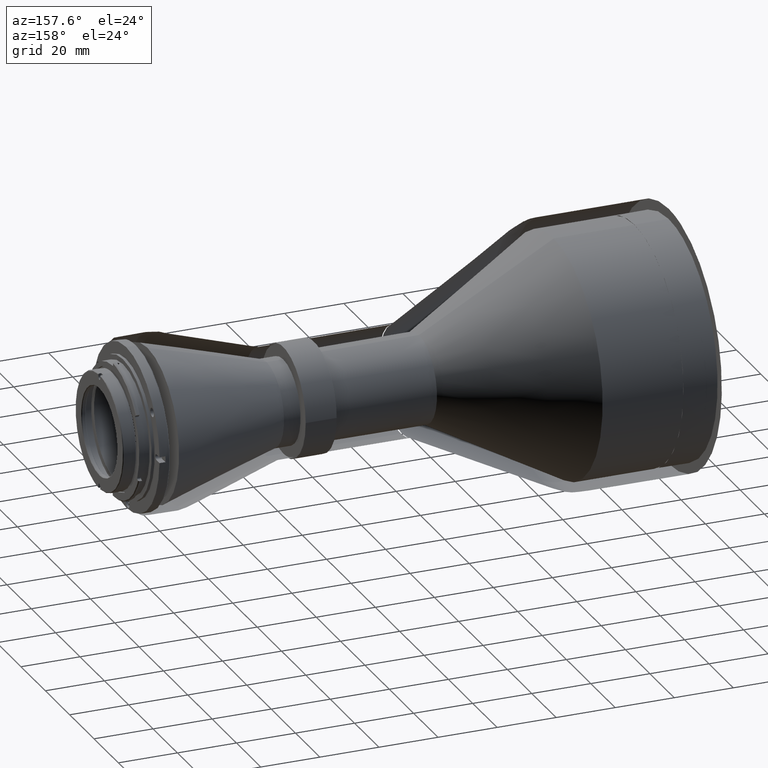
[diagram: clean part render]
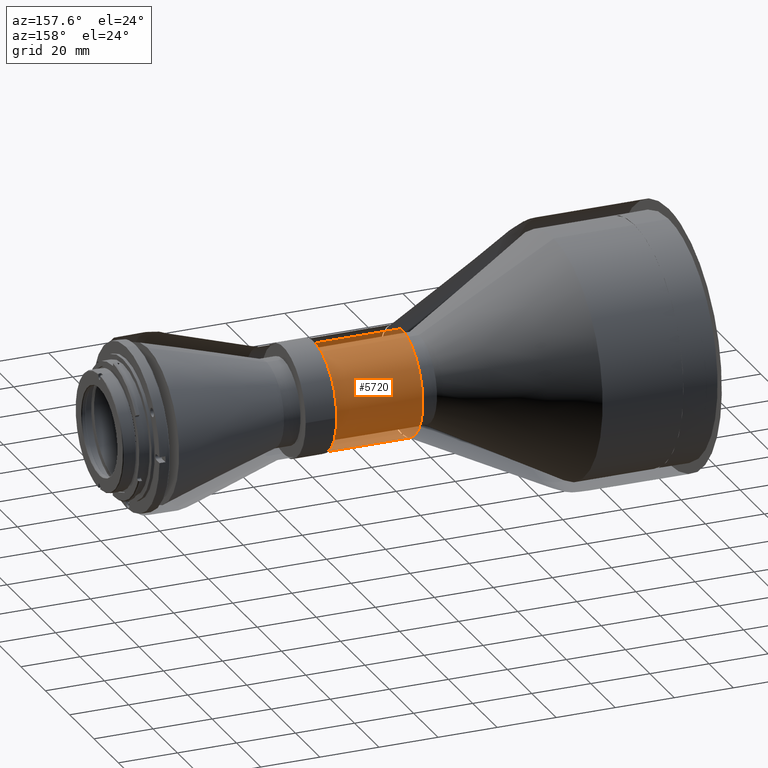
[diagram: same view with one face highlighted and labeled with its STEP entity id]
A machine part, auxiliary view. The second image highlights one B-rep face of the part: STEP entity #5720.
In plain terms, the highlighted cylindrical surface (partial cylindrical patch) has radius 18 mm, axis along (1, 0, 0).
Its self-contained STEP definition (entity closure, byte-faithful):
#45 = VERTEX_POINT ( 'NONE', #5114 ) ;
#121 = B_SPLINE_CURVE_WITH_KNOTS ( 'NONE', 3,
 ( #446, #6898, #8262, #1801, #5292, #8968, #1000, #4731, #1046, #2511, #5997, #9012, #8168, #6716, #1143, #4025, #6808, #399, #259, #3315, #3120, #9063, #7651, #1849, #6196, #4680, #3884, #6760, #7555, #1757, #8868, #1094, #2415, #3978, #302, #6852, #1192, #5384, #2606, #7466, #3169, #5487, #8357, #3267, #1901, #4783, #6146, #1711, #4587, #6050, #8918, #2556, #5435, #8309, #2463, #5339 ),
 .UNSPECIFIED., .F., .F.,
 ( 4, 2, 2, 2, 2, 2, 2, 2, 2, 2, 2, 2, 2, 2, 2, 2, 2, 2, 2, 2, 2, 2, 2, 2, 2, 2, 2, 4 ),
 ( 0.3333404238555422450, 0.3541735356100568777, 0.3750066473645715104, 0.3958397591190861431, 0.4166728708736008313, 0.4583390943826297081, 0.4791722061371438413, 0.5000053178916580299, 0.5208384296461721075, 0.5416715414006862961, 0.5833377649097144513, 0.6041708766642285289, 0.6250039884187426065, 0.6458371001732566841, 0.6666702119277707617, 0.7083364354367989169, 0.7291695471913128834, 0.7500026589458270720, 0.7708357707003410386, 0.7916688824548551162, 0.8333351059638840486, 0.8541682177183986813, 0.8750013294729130919, 0.8958344412274275026, 0.9166675529819421353, 0.9583337764909711787, 0.9791668882454855893, 1.000000000000000000 ),
 .UNSPECIFIED. ) ;
#259 = CARTESIAN_POINT ( 'NONE',  ( 96.07470248000001334, 14.63977100480564530, -153.6221528347644210 ) ) ;
#302 = CARTESIAN_POINT ( 'NONE',  ( 96.07470248000002755, 16.85546658595249525, -170.4549580707854375 ) ) ;
#399 = CARTESIAN_POINT ( 'NONE',  ( 96.07470248000004176, 14.28760120858573046, -153.1473240025691496 ) ) ;
#446 = CARTESIAN_POINT ( 'NONE',  ( 96.07470248899998921, 3.218466822045162552E-09, -146.1113920455246387 ) ) ;
#495 = CARTESIAN_POINT ( 'NONE',  ( 66.60158703892639664, 16.17899328778576518, -156.1346934763729450 ) ) ;
#512 = CARTESIAN_POINT ( 'NONE',  ( 81.33814476300000251, -1.355854680848614041E-28, -146.1114151909995655 ) ) ;
#541 = CARTESIAN_POINT ( 'NONE',  ( 66.60158703892639664, 13.56096261225920507, -176.0062967014450521 ) ) ;
#782 = LINE ( 'NONE', #3662, #2322 ) ;
#874 = DIRECTION ( 'NONE',  ( 1.000000000000000000, 0.000000000000000000, 0.000000000000000000 ) ) ;
#973 = AXIS2_PLACEMENT_3D ( 'NONE', #6743, #6788, #6834 ) ;
#1000 = CARTESIAN_POINT ( 'NONE',  ( 96.07470248000002755, 4.661676962329277529, -146.7154800735443132 ) ) ;
#1046 = CARTESIAN_POINT ( 'NONE',  ( 96.07470248000004176, 6.345108377216560847, -147.2565310340280575 ) ) ;
#1094 = CARTESIAN_POINT ( 'NONE',  ( 96.07470248000002755, 17.53935381255666925, -168.2001695520610269 ) ) ;
#1143 = CARTESIAN_POINT ( 'NONE',  ( 96.07470248000001334, 12.31114250905945795, -150.9667182083490502 ) ) ;
#1192 = CARTESIAN_POINT ( 'NONE',  ( 96.07470248000004176, 16.15237853776849519, -172.0769947795117218 ) ) ;
#1236 = B_SPLINE_CURVE_WITH_KNOTS ( 'NONE', 3,
 ( #6295, #1329, #2744, #6380, #3497, #9155, #6424, #1379, #8453, #541, #3455, #9245, #7877, #3365, #7702, #7831, #4916, #4256, #3412, #1995, #5631, #495, #4871, #7746, #1288, #8496, #7789, #9290, #4211, #4075, #5674, #8544, #7265, #5808 ),
 .UNSPECIFIED., .F., .F.,
 ( 4, 2, 2, 2, 2, 2, 2, 2, 2, 2, 2, 2, 2, 2, 2, 2, 4 ),
 ( -1.000000000000000000, -0.9375000000000000000, -0.8750000000000001110, -0.8125000000000000000, -0.7500000000000000000, -0.6875000000000000000, -0.6250000000000000000, -0.5625000000000000000, -0.5000000000000000000, -0.4375000000000000000, -0.3749999999999998890, -0.3124999999999998890, -0.2499999999999997780, -0.1874999999999998890, -0.1249999999999998890, -0.06250000000000000000, -0.000000000000000000 ),
 .UNSPECIFIED. ) ;
#1288 = CARTESIAN_POINT ( 'NONE',  ( 66.60158703892639664, 13.56096261225905941, -152.2165336805448135 ) ) ;
#1329 = CARTESIAN_POINT ( 'NONE',  ( 66.60158703892639664, 1.178097245096017209, -182.1114151909903853 ) ) ;
#1379 = CARTESIAN_POINT ( 'NONE',  ( 66.60158703892639664, 10.97981625398498196, -178.4233524514592375 ) ) ;
#1711 = CARTESIAN_POINT ( 'NONE',  ( 96.07470248000002755, 7.966350278981437327, -180.2633224506187730 ) ) ;
#1723 = CARTESIAN_POINT ( 'NONE',  ( 66.60158703892641086, 1.043770461255672006E-13, -182.1114151909904990 ) ) ;
#1757 = CARTESIAN_POINT ( 'NONE',  ( 96.07470247999999913, 18.00008917614680826, -165.2890392936584760 ) ) ;
#1801 = CARTESIAN_POINT ( 'NONE',  ( 96.07470248000001334, 2.350776600415617423, -146.2557873199660889 ) ) ;
#1849 = CARTESIAN_POINT ( 'NONE',  ( 96.07470248000002755, 17.39599407110641849, -159.4499789391271634 ) ) ;
#1901 = CARTESIAN_POINT ( 'NONE',  ( 96.07470248000002755, 10.49061672707500570, -178.7502078840822719 ) ) ;
#1995 = CARTESIAN_POINT ( 'NONE',  ( 66.60158703892641086, 17.42429967634159382, -159.4443289578318286 ) ) ;
#2054 = EDGE_LOOP ( 'NONE', ( #5961, #3201, #5179, #5708 ) ) ;
#2322 = VECTOR ( 'NONE', #874, 1000.000000000000000 ) ;
#2415 = CARTESIAN_POINT ( 'NONE',  ( 96.07470248000001334, 17.39572564860750603, -168.7736301571663375 ) ) ;
#2463 = CARTESIAN_POINT ( 'NONE',  ( 96.07470248000002755, 0.5902320365141722203, -182.1114151910003329 ) ) ;
#2511 = CARTESIAN_POINT ( 'NONE',  ( 96.07470248000004176, 7.976521022211192857, -147.9322582347705861 ) ) ;
#2538 = CYLINDRICAL_SURFACE ( 'NONE', #973, 17.99999999999540989 ) ;
#2556 = CARTESIAN_POINT ( 'NONE',  ( 96.07470248000004176, 2.934726415843505354, -181.8803269731702130 ) ) ;
#2606 = CARTESIAN_POINT ( 'NONE',  ( 96.07470248000004176, 15.29333176096207936, -173.6225414479326048 ) ) ;
#2744 = CARTESIAN_POINT ( 'NONE',  ( 66.60158703892639664, 2.356165359415931970, -181.9953856091606781 ) ) ;
#3080 = EDGE_CURVE ( 'NONE', #9150, #5700, #121, .T. ) ;
#3120 = CARTESIAN_POINT ( 'NONE',  ( 96.07470247999999913, 16.17922491130633489, -156.1349563163130370 ) ) ;
#3169 = CARTESIAN_POINT ( 'NONE',  ( 96.07470248000001334, 13.56095707534392680, -176.0064417518224502 ) ) ;
#3201 = ORIENTED_EDGE ( 'NONE', *, *, #6578, .T. ) ;
#3240 = EDGE_CURVE ( 'NONE', #8926, #45, #1236, .T. ) ;
#3267 = CARTESIAN_POINT ( 'NONE',  ( 96.07470248000001334, 10.96394305491526389, -178.3992264544305044 ) ) ;
#3315 = CARTESIAN_POINT ( 'NONE',  ( 96.07470248000002755, 15.62083645432595880, -155.0903577905687030 ) ) ;
#3365 = CARTESIAN_POINT ( 'NONE',  ( 66.60158703892639664, 17.08066988261213837, -169.9112970415127677 ) ) ;
#3412 = CARTESIAN_POINT ( 'NONE',  ( 66.60158703892641086, 17.88397041816574884, -161.7552498315790785 ) ) ;
#3455 = CARTESIAN_POINT ( 'NONE',  ( 66.60158703892639664, 14.31193726046444858, -175.0912314449797691 ) ) ;
#3497 = CARTESIAN_POINT ( 'NONE',  ( 66.60158703892639664, 5.799881850517985882, -181.1920850736070179 ) ) ;
#3601 = CARTESIAN_POINT ( 'NONE',  ( 96.07470248899998921, 3.218466822045162552E-09, -146.1113920455246387 ) ) ;
#3662 = CARTESIAN_POINT ( 'NONE',  ( 81.33814476300000251, 1.043770461255672764E-13, -182.1114151909903853 ) ) ;
#3884 = CARTESIAN_POINT ( 'NONE',  ( 96.07470248000001334, 17.85566553463110395, -161.7608835578621722 ) ) ;
#3978 = CARTESIAN_POINT ( 'NONE',  ( 96.07470247999999913, 17.05403189268667674, -169.9001623814377240 ) ) ;
#4025 = CARTESIAN_POINT ( 'NONE',  ( 96.07470248000004176, 13.14534043823540621, -151.8009068524461895 ) ) ;
#4075 = CARTESIAN_POINT ( 'NONE',  ( 66.60158703892639664, 5.799881850517786042, -147.0307453083829046 ) ) ;
#4211 = CARTESIAN_POINT ( 'NONE',  ( 66.60158703892639664, 7.976721714621807457, -147.9324219032091889 ) ) ;
#4256 = CARTESIAN_POINT ( 'NONE',  ( 66.60158703892638243, 17.99999999999543832, -162.9333179458989491 ) ) ;
#4571 = CARTESIAN_POINT ( 'NONE',  ( 96.07470249142200203, 3.568052712872249707E-14, -182.1114151909935117 ) ) ;
#4587 = CARTESIAN_POINT ( 'NONE',  ( 96.07470248000001334, 7.431944757544597380, -180.5161009769088594 ) ) ;
#4680 = CARTESIAN_POINT ( 'NONE',  ( 96.07470248000002755, 17.76928473539256004, -161.1786502158255416 ) ) ;
#4731 = CARTESIAN_POINT ( 'NONE',  ( 96.07470248000001334, 5.788490438349359835, -147.0573769010957221 ) ) ;
#4783 = CARTESIAN_POINT ( 'NONE',  ( 96.07470248000002755, 9.509723873782720105, -179.4056540240879940 ) ) ;
#4871 = CARTESIAN_POINT ( 'NONE',  ( 66.60158703892639664, 15.62096878241965570, -155.0907030562791817 ) ) ;
#4916 = CARTESIAN_POINT ( 'NONE',  ( 66.60158703892638243, 17.99999999999545963, -165.2895124360907175 ) ) ;
#5114 = CARTESIAN_POINT ( 'NONE',  ( 66.60158703892641086, 2.204364238464549908E-15, -146.1114151909995940 ) ) ;
#5179 = ORIENTED_EDGE ( 'NONE', *, *, #3080, .F. ) ;
#5292 = CARTESIAN_POINT ( 'NONE',  ( 96.07470248000002755, 2.933650245757153385, -146.3423132397708741 ) ) ;
#5339 = CARTESIAN_POINT ( 'NONE',  ( 96.07470249142200203, 3.568052712872249707E-14, -182.1114151909935117 ) ) ;
#5384 = CARTESIAN_POINT ( 'NONE',  ( 96.07470247999999913, 15.59724061000928863, -173.1154659409896510 ) ) ;
#5435 = CARTESIAN_POINT ( 'NONE',  ( 96.07470248000004176, 2.349873660069027981, -181.9671050602830462 ) ) ;
#5487 = CARTESIAN_POINT ( 'NONE',  ( 96.07470248000005597, 12.31193189824783651, -177.2553559111827894 ) ) ;
#5631 = CARTESIAN_POINT ( 'NONE',  ( 66.60158703892639664, 17.08066988261207086, -158.3115333404770411 ) ) ;
#5674 = CARTESIAN_POINT ( 'NONE',  ( 66.60158703892639664, 4.667086233162970998, -146.6871155146534136 ) ) ;
#5700 = VERTEX_POINT ( 'NONE', #4571 ) ;
#5708 = ORIENTED_EDGE ( 'NONE', *, *, #6144, .F. ) ;
#5720 = ADVANCED_FACE ( 'NONE', ( #7448 ), #2538, .F. ) ;
#5724 = DIRECTION ( 'NONE',  ( 1.000000000000000000, 0.000000000000000000, 0.000000000000000000 ) ) ;
#5808 = CARTESIAN_POINT ( 'NONE',  ( 66.60158703892641086, 2.204364238464549908E-15, -146.1114151909995940 ) ) ;
#5961 = ORIENTED_EDGE ( 'NONE', *, *, #3240, .F. ) ;
#5997 = CARTESIAN_POINT ( 'NONE',  ( 96.07470248000002755, 9.021148383289416373, -148.4905926335397055 ) ) ;
#6050 = CARTESIAN_POINT ( 'NONE',  ( 96.07470247999999913, 5.800566712932708313, -181.1919138994582852 ) ) ;
#6144 = EDGE_CURVE ( 'NONE', #45, #9150, #9253, .T. ) ;
#6146 = CARTESIAN_POINT ( 'NONE',  ( 96.07470248000001334, 9.004870584164004654, -179.7082769373952829 ) ) ;
#6196 = CARTESIAN_POINT ( 'NONE',  ( 96.07470248000001334, 17.53911755931793692, -160.0215931152971223 ) ) ;
#6295 = CARTESIAN_POINT ( 'NONE',  ( 66.60158703892641086, 1.043770461255672006E-13, -182.1114151909904990 ) ) ;
#6380 = CARTESIAN_POINT ( 'NONE',  ( 66.60158703892638243, 4.667086233163183273, -181.5357148673365089 ) ) ;
#6424 = CARTESIAN_POINT ( 'NONE',  ( 66.60158703892639664, 9.020712134715868302, -179.7323839734145565 ) ) ;
#6578 = EDGE_CURVE ( 'NONE', #8926, #5700, #782, .T. ) ;
#6716 = CARTESIAN_POINT ( 'NONE',  ( 96.07470247999999913, 11.87456993373065117, -150.5709504145605138 ) ) ;
#6743 = CARTESIAN_POINT ( 'NONE',  ( 81.33814476300000251, 5.329070518201590111E-14, -164.1114151909949896 ) ) ;
#6760 = CARTESIAN_POINT ( 'NONE',  ( 96.07470247999999913, 17.97102155551066716, -162.9327598254805878 ) ) ;
#6788 = DIRECTION ( 'NONE',  ( 1.000000000000000000, 0.000000000000000000, 0.000000000000000000 ) ) ;
#6808 = CARTESIAN_POINT ( 'NONE',  ( 96.07470248000002755, 13.54063217814066000, -152.2370280112902208 ) ) ;
#6834 = DIRECTION ( 'NONE',  ( 0.000000000000000000, -2.960594732334979162E-15, 1.000000000000000000 ) ) ;
#6852 = CARTESIAN_POINT ( 'NONE',  ( 96.07470248000002755, 16.40402373295713545, -171.5448932054708280 ) ) ;
#6898 = CARTESIAN_POINT ( 'NONE',  ( 96.07470247999999913, 0.5887703971600187769, -146.1114098354472048 ) ) ;
#7265 = CARTESIAN_POINT ( 'NONE',  ( 66.60158703892639664, 1.178097245095796719, -146.1114151909995371 ) ) ;
#7448 = FACE_OUTER_BOUND ( 'NONE', #2054, .T. ) ;
#7462 = VECTOR ( 'NONE', #5724, 1000.000000000000000 ) ;
#7466 = CARTESIAN_POINT ( 'NONE',  ( 96.07470247999999913, 14.31234293787905010, -175.0907981074923612 ) ) ;
#7555 = CARTESIAN_POINT ( 'NONE',  ( 96.07470247999999913, 18.00004295733604565, -163.5232205185513124 ) ) ;
#7651 = CARTESIAN_POINT ( 'NONE',  ( 96.07470248000001334, 17.05424138419249047, -158.3234647372907204 ) ) ;
#7702 = CARTESIAN_POINT ( 'NONE',  ( 66.60158703892639664, 17.42429967634165777, -168.7785014241579233 ) ) ;
#7746 = CARTESIAN_POINT ( 'NONE',  ( 66.60158703892641086, 14.31193726046431536, -153.1315989370100681 ) ) ;
#7789 = CARTESIAN_POINT ( 'NONE',  ( 66.60158703892639664, 10.97981625398479011, -149.7994779305305713 ) ) ;
#7831 = CARTESIAN_POINT ( 'NONE',  ( 66.60158703892638243, 17.88397041816577016, -166.4675805504107302 ) ) ;
#7877 = CARTESIAN_POINT ( 'NONE',  ( 66.60158703892639664, 16.17899328778586820, -172.0881369056167500 ) ) ;
#8168 = CARTESIAN_POINT ( 'NONE',  ( 96.07470248000002755, 10.96455999562847339, -149.8241500867333400 ) ) ;
#8262 = CARTESIAN_POINT ( 'NONE',  ( 96.07470248000004176, 1.179231820781029949, -146.1404126373591623 ) ) ;
#8309 = CARTESIAN_POINT ( 'NONE',  ( 96.07470248000002755, 1.178253175830811905, -182.0825531648568472 ) ) ;
#8357 = CARTESIAN_POINT ( 'NONE',  ( 96.07470248000005597, 11.87391422218726333, -177.6523782241109188 ) ) ;
#8453 = CARTESIAN_POINT ( 'NONE',  ( 66.60158703892639664, 11.89488151045024900, -177.6723778032540508 ) ) ;
#8496 = CARTESIAN_POINT ( 'NONE',  ( 66.60158703892641086, 11.89488151045008024, -150.5504525787357863 ) ) ;
#8544 = CARTESIAN_POINT ( 'NONE',  ( 66.60158703892641086, 2.356165359415712590, -146.2274447728292444 ) ) ;
#8868 = CARTESIAN_POINT ( 'NONE',  ( 96.07470248000002755, 17.88403169040694962, -166.4678160042886077 ) ) ;
#8918 = CARTESIAN_POINT ( 'NONE',  ( 96.07470248000001334, 4.667109937152268628, -181.5358032118618041 ) ) ;
#8926 = VERTEX_POINT ( 'NONE', #1723 ) ;
#8968 = CARTESIAN_POINT ( 'NONE',  ( 96.07470248000004176, 4.090708923810837838, -146.5724673412793777 ) ) ;
#9012 = CARTESIAN_POINT ( 'NONE',  ( 96.07470247999999913, 10.48972010482695794, -149.4719952626516601 ) ) ;
#9063 = CARTESIAN_POINT ( 'NONE',  ( 96.07470248000002755, 16.85506968897070479, -157.7668529656429826 ) ) ;
#9150 = VERTEX_POINT ( 'NONE', #3601 ) ;
#9155 = CARTESIAN_POINT ( 'NONE',  ( 66.60158703892641086, 7.976721714622001080, -180.2904084787807619 ) ) ;
#9245 = CARTESIAN_POINT ( 'NONE',  ( 66.60158703892639664, 15.62096878241976050, -173.1321273257105986 ) ) ;
#9253 = LINE ( 'NONE', #512, #7462 ) ;
#9290 = CARTESIAN_POINT ( 'NONE',  ( 66.60158703892641086, 9.020712134715664021, -148.4904464085752522 ) ) ;